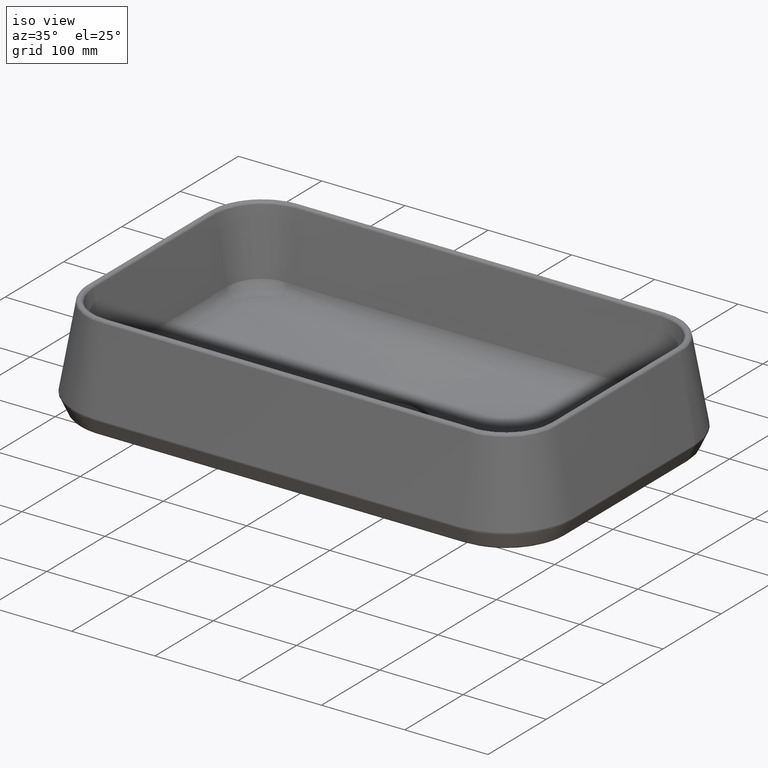
[diagram: clean part render]
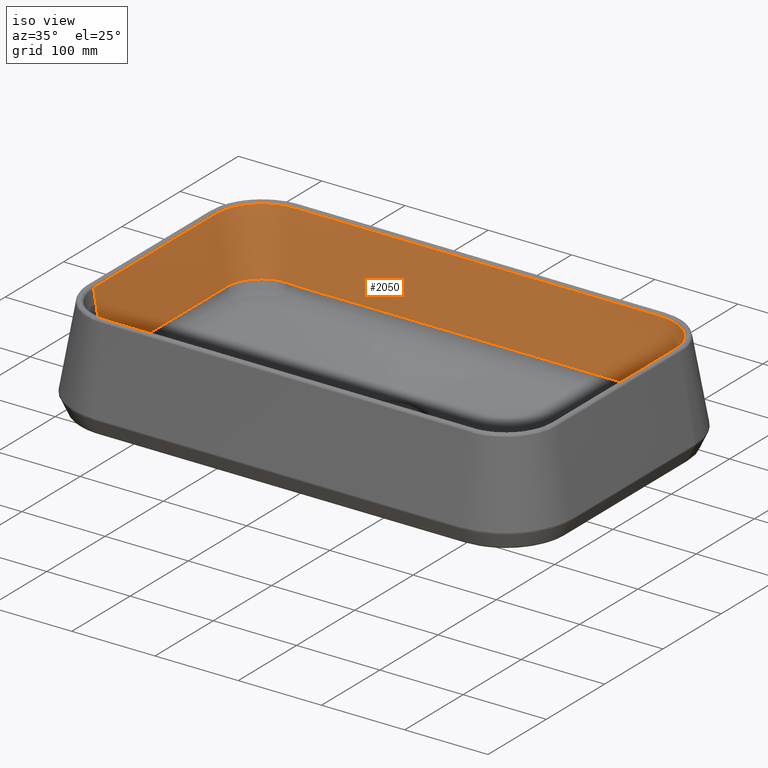
[diagram: same view with one face highlighted and labeled with its STEP entity id]
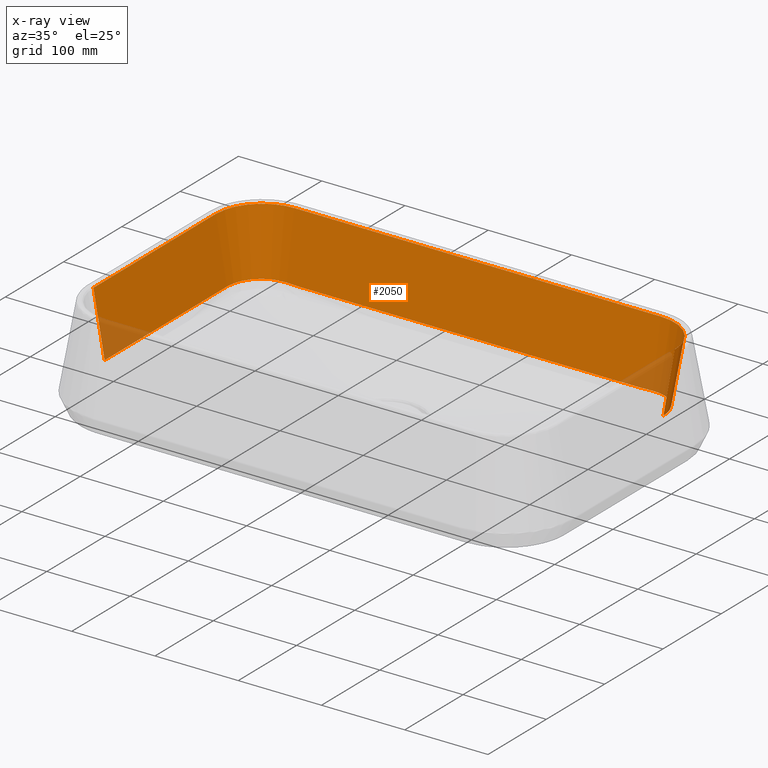
[diagram: x-ray of the same camera — body ghosted, the highlighted face saturated]
A machine part, iso view. The second image highlights one B-rep face of the part: STEP entity #2050.
The next image is the same camera in x-ray: the body ghosted, the highlighted face saturated — about 5% of this face is hidden behind the body in this view.
In plain terms, the highlighted face is a freeform B-spline surface patch.
Its self-contained STEP definition (entity closure, byte-faithful):
#59 = CARTESIAN_POINT ( 'NONE',  ( 82.91873385660538531, 340.9338168300139387, 22.22452315779359822 ) ) ;
#139 = CARTESIAN_POINT ( 'NONE',  ( 500.1888610961831887, 346.9813245837063391, 21.24870913313878873 ) ) ;
#159 = VERTEX_POINT ( 'NONE', #8939 ) ;
#198 = CARTESIAN_POINT ( 'NONE',  ( 63.19679294044160400, 304.9999999999989768, 20.23855445668689867 ) ) ;
#328 = CARTESIAN_POINT ( 'NONE',  ( 49.56982243634900698, 234.9999999999990337, 97.52094453301371857 ) ) ;
#352 = ORIENTED_EDGE ( 'NONE', *, *, #9972, .T. ) ;
#424 = CARTESIAN_POINT ( 'NONE',  ( 541.1297212598051374, 347.0486794019286663, 21.63069728918645751 ) ) ;
#453 = CARTESIAN_POINT ( 'NONE',  ( 600.5650980638040437, 305.0000000000000000, 98.28611671262349603 ) ) ;
#518 = CARTESIAN_POINT ( 'NONE',  ( 105.0000000000000000, 360.4301775636513412, 97.52094453301526755 ) ) ;
#575 = CARTESIAN_POINT ( 'NONE',  ( 325.0000000000000000, 53.19679294044210849, 20.23855445668689867 ) ) ;
#636 = CARTESIAN_POINT ( 'NONE',  ( 72.97759835907659465, 350.5837691451999945, 97.52094453340581026 ) ) ;
#764 = CARTESIAN_POINT ( 'NONE',  ( 50.46491587137720103, 317.1780416379060057, 97.52094453202519730 ) ) ;
#1063 = CARTESIAN_POINT ( 'NONE',  ( 586.8032070595579626, 200.0000000000000000, 20.23855445668689867 ) ) ;
#1153 = CARTESIAN_POINT ( 'NONE',  ( 319.2523486901457090, 346.9381817074564083, 21.00403372341749275 ) ) ;
#1192 = CARTESIAN_POINT ( 'NONE',  ( 62.97976880827857116, 308.5258566094486810, 22.30327525676750255 ) ) ;
#1199 = CARTESIAN_POINT ( 'NONE',  ( 117.8792597533705901, 347.0004539620855439, 21.35719722896116934 ) ) ;
#1233 = CARTESIAN_POINT ( 'NONE',  ( 62.84191149092794859, 295.7825919754770325, 22.25118716943289954 ) ) ;
#1269 = CARTESIAN_POINT ( 'NONE',  ( 427.7023321076529783, 346.9546243362144651, 21.09728450495965646 ) ) ;
#1295 = EDGE_CURVE ( 'NONE', #10996, #17049, #15213, .T. ) ;
#1317 = CARTESIAN_POINT ( 'NONE',  ( 113.8441454012030505, 347.0179271731363428, 21.45629273312446017 ) ) ;
#1351 = CARTESIAN_POINT ( 'NONE',  ( 62.84356881157287944, 266.0301499788491810, 22.24178803699028961 ) ) ;
#1391 = CARTESIAN_POINT ( 'NONE',  ( 476.7773498838889736, 346.9718322434447941, 21.19487539638857143 ) ) ;
#1434 = CARTESIAN_POINT ( 'NONE',  ( 100.2764646979316154, 346.8340192721520907, 21.91746976713236705 ) ) ;
#1440 = CARTESIAN_POINT ( 'NONE',  ( 120.5885111056723247, 346.9942016947449019, 21.32173885886130194 ) ) ;
#1479 = CARTESIAN_POINT ( 'NONE',  ( 62.84394504833733208, 257.2966711921373530, 22.23965429226839419 ) ) ;
#1517 = CARTESIAN_POINT ( 'NONE',  ( 396.8760604965901848, 346.9463010324559491, 21.05008070367392392 ) ) ;
#1554 = CARTESIAN_POINT ( 'NONE',  ( 75.14087039908775978, 334.7745524269374187, 22.30409800320181191 ) ) ;
#1676 = CARTESIAN_POINT ( 'NONE',  ( 558.3874409481187513, 344.9538105146539237, 22.09588636601118949 ) ) ;
#1678 = CARTESIAN_POINT ( 'NONE',  ( 88.33429101957464979, 343.7051889266042508, 22.14939720185635608 ) ) ;
#1791 = CARTESIAN_POINT ( 'NONE',  ( 561.0676477058794944, 343.9549087613406755, 22.14010158827629127 ) ) ;
#1793 = CARTESIAN_POINT ( 'NONE',  ( 102.7818411719139533, 347.0295923456291121, 21.85395971815396976 ) ) ;
#1816 = CARTESIAN_POINT ( 'NONE',  ( 536.6886908398411151, 347.0207351156685149, 21.47221736655681212 ) ) ;
#1911 = CARTESIAN_POINT ( 'NONE',  ( 88.83652199210190759, 343.9155248065143269, 22.14160328927012245 ) ) ;
#1919 = CARTESIAN_POINT ( 'NONE',  ( 120.7352993862959067, 346.9940203013414930, 21.32071012575103808 ) ) ;
#2017 = CARTESIAN_POINT ( 'NONE',  ( 62.84169163908542544, 299.3658782427420988, 22.25243401119072217 ) ) ;
#2020 = CARTESIAN_POINT ( 'NONE',  ( 62.83685039372070946, 304.9999999999989768, 22.27989007801199506 ) ) ;
#2050 = ADVANCED_FACE ( 'NONE', ( #2316 ), #13139, .T. ) ;
#2058 = CARTESIAN_POINT ( 'NONE',  ( 49.43490193619629736, 304.9999999999989768, 98.28611671262349603 ) ) ;
#2159 = CARTESIAN_POINT ( 'NONE',  ( 550.1811000373928664, 346.8730052460559818, 21.93135876992081279 ) ) ;
#2184 = CARTESIAN_POINT ( 'NONE',  ( 63.19679294044249929, 53.19679294044249929, 20.23855445668689867 ) ) ;
#2251 = CARTESIAN_POINT ( 'NONE',  ( 504.1241469584942934, 346.9829754648906714, 21.25807174558642743 ) ) ;
#2287 = CARTESIAN_POINT ( 'NONE',  ( 529.6000640504701096, 346.9944528345130834, 21.32316314326278928 ) ) ;
#2316 = FACE_OUTER_BOUND ( 'NONE', #6172, .T. ) ;
#2390 = ORIENTED_EDGE ( 'NONE', *, *, #16787, .T. ) ;
#2679 = CARTESIAN_POINT ( 'NONE',  ( 427.4559542672556063, 346.9545496593548819, 21.09686099144389715 ) ) ;
#2699 = CARTESIAN_POINT ( 'NONE',  ( 557.1780416379911003, 359.5350841286300465, 97.52094453208570712 ) ) ;
#2777 = CARTESIAN_POINT ( 'NONE',  ( 582.9331742258165150, 323.6448302822170149, 22.34677480664188209 ) ) ;
#2798 = CARTESIAN_POINT ( 'NONE',  ( 325.0000000000000000, 39.43490193619670237, 98.28611671262349603 ) ) ;
#2804 = CARTESIAN_POINT ( 'NONE',  ( 65.06264489638112991, 318.5693853183490205, 22.34160512620152517 ) ) ;
#2934 = CARTESIAN_POINT ( 'NONE',  ( 113.6932496965245605, 347.0187282660804726, 21.46083595697372459 ) ) ;
#2970 = CARTESIAN_POINT ( 'NONE',  ( 62.84467644513598827, 232.9967554905794316, 22.23550633490106421 ) ) ;
#3093 = CARTESIAN_POINT ( 'NONE',  ( 62.84216085212155889, 294.0257433942174430, 22.24977297182938329 ) ) ;
#3127 = ORIENTED_EDGE ( 'NONE', *, *, #23087, .F. ) ;
#3138 = CARTESIAN_POINT ( 'NONE',  ( 424.0127499888275224, 346.9535194150461734, 21.09101818562517039 ) ) ;
#3180 = EDGE_CURVE ( 'NONE', #10007, #11080, #11132, .T. ) ;
#3186 = CARTESIAN_POINT ( 'NONE',  ( 105.0000000000000000, 347.0771883882213160, 21.79237978484614402 ) ) ;
#3217 = CARTESIAN_POINT ( 'NONE',  ( 62.84354300839623164, 266.5996481837172496, 22.24193437407681984 ) ) ;
#3252 = CARTESIAN_POINT ( 'NONE',  ( 463.0579549175205329, 346.9665785981767385, 21.16508049349356924 ) ) ;
#3295 = CARTESIAN_POINT ( 'NONE',  ( 63.33374591708705736, 311.5078070909898429, 22.31877051634057807 ) ) ;
#3317 = CARTESIAN_POINT ( 'NONE',  ( 62.83713368408133704, 95.38022196542272013, 22.27828345854011260 ) ) ;
#3337 = CARTESIAN_POINT ( 'NONE',  ( 62.84383263417946353, 141.8892823960137832, 22.24029182463794285 ) ) ;
#3374 = CARTESIAN_POINT ( 'NONE',  ( 143.3764853126787102, 346.9838385802391372, 21.26296671596986343 ) ) ;
#3415 = CARTESIAN_POINT ( 'NONE',  ( 75.11116091186288202, 334.7447892103423328, 22.30433972017218380 ) ) ;
#3422 = CARTESIAN_POINT ( 'NONE',  ( 121.4806556071306858, 346.9934593248104875, 21.31752866974899163 ) ) ;
#3439 = CARTESIAN_POINT ( 'NONE',  ( 62.84064466966658813, 98.04788315530635145, 22.25837166982157811 ) ) ;
#3442 = CARTESIAN_POINT ( 'NONE',  ( 536.9945036671081198, 347.0224466402785310, 21.48192390496254234 ) ) ;
#3493 = CARTESIAN_POINT ( 'NONE',  ( 342.1539598881005872, 346.9381742338795220, 21.00399133865611034 ) ) ;
#3530 = CARTESIAN_POINT ( 'NONE',  ( 93.49225942545530188, 345.5282755359438056, 22.06200307323368648 ) ) ;
#3537 = CARTESIAN_POINT ( 'NONE',  ( 120.6664665102315439, 346.9941034081139719, 21.32118144767836654 ) ) ;
#3548 = CARTESIAN_POINT ( 'NONE',  ( 62.84068379572191532, 98.10251798504064880, 22.25814977493534030 ) ) ;
#3652 = CARTESIAN_POINT ( 'NONE',  ( 96.48719022657186883, 346.2450642716784728, 22.00264225752609448 ) ) ;
#3675 = CARTESIAN_POINT ( 'NONE',  ( 537.1480569316551055, 347.0233186165856409, 21.48686912834038765 ) ) ;
#3722 = EDGE_CURVE ( 'NONE', #20916, #14371, #22662, .T. ) ;
#3735 = CARTESIAN_POINT ( 'NONE',  ( 488.6948517241133914, 346.9765715051937036, 21.22175308538357541 ) ) ;
#3778 = CARTESIAN_POINT ( 'NONE',  ( 565.9238675604885884, 341.6953913596549341, 22.21094504262886815 ) ) ;
#3780 = CARTESIAN_POINT ( 'NONE',  ( 88.72646132310613609, 343.8699876338132526, 22.14332230609040764 ) ) ;
#3859 = CARTESIAN_POINT ( 'NONE',  ( 520.6848865118136018, 346.9899467566023645, 21.29760790552945693 ) ) ;
#3886 = CARTESIAN_POINT ( 'NONE',  ( 62.84007237754382658, 302.9717010672428614, 22.26161729973290093 ) ) ;
#3923 = CARTESIAN_POINT ( 'NONE',  ( 586.8032070595588721, 346.8032070595580194, 20.23855445668690223 ) ) ;
#3979 = CARTESIAN_POINT ( 'NONE',  ( 504.1714831414896025, 346.9829953898969848, 21.25818474591100227 ) ) ;
#4040 = CARTESIAN_POINT ( 'NONE',  ( 63.19679294044160400, 94.99999999999960210, 20.23855445668679920 ) ) ;
#4127 = CARTESIAN_POINT ( 'NONE',  ( 62.84172035051560812, 300.8206661368120081, 22.25227118057872033 ) ) ;
#4268 = CARTESIAN_POINT ( 'NONE',  ( 540.9991788598819085, 347.0477767182499633, 21.62557791565110676 ) ) ;
#4271 = CARTESIAN_POINT ( 'NONE',  ( 574.7650964590517333, 334.8683631171617208, 22.30331911537328438 ) ) ;
#4292 = CARTESIAN_POINT ( 'NONE',  ( 600.5650980638040437, 200.0000000000000000, 98.28611671262349603 ) ) ;
#4327 = EDGE_CURVE ( 'NONE', #11080, #7400, #14965, .T. ) ;
#4412 = CARTESIAN_POINT ( 'NONE',  ( 545.0000000000000000, 53.19679294044159690, 20.23855445668689867 ) ) ;
#4483 = VERTEX_POINT ( 'NONE', #11015 ) ;
#4526 = CARTESIAN_POINT ( 'NONE',  ( 242.4828798320883152, 346.9485886187048891, 21.06305424997844611 ) ) ;
#4896 = CARTESIAN_POINT ( 'NONE',  ( 65.40961793690114234, 319.5392945601900010, 22.34312415470276036 ) ) ;
#4916 = CARTESIAN_POINT ( 'NONE',  ( 62.83896714883442769, 96.51494441684458536, 22.26788536321879164 ) ) ;
#4941 = CARTESIAN_POINT ( 'NONE',  ( 62.84263233190267783, 286.0999050189024615, 22.24709907711845958 ) ) ;
#4964 = B_SPLINE_CURVE_WITH_KNOTS ( 'NONE', 3,
 ( #2287, #9128, #22366, #22605, #23199, #1816, #3442, #3675, #5645, #6236, #20747, #20383, #5524, #13085, #14829, #21218, #11220, #4268, #7383, #10982, #424, #7500, #16921, #24456, #16678 ),
 .UNSPECIFIED., .F., .F.,
 ( 4, 1, 1, 1, 1, 1, 1, 1, 2, 2, 1, 1, 1, 1, 1, 1, 2, 2, 4 ),
 ( 0.0000000000000000000, 0.2499999999990851762, 0.3749999999986169397, 0.4374999999983827936, 0.4687499999982657206, 0.4843749999982170928, 0.4921874999981828980, 0.4960937499981658005, 0.4980468749981670773, 0.4999999999981683541, 0.6249999999986536325, 0.6874999999988963273, 0.7187499999990176747, 0.7343749999990784039, 0.7421874999991087130, 0.7460937499991239230, 0.7480468749991413535, 0.7499999999991588950, 1.000000000000000000 ),
 .UNSPECIFIED. ) ;
#5041 = CARTESIAN_POINT ( 'NONE',  ( 62.83715037257236702, 95.38638734159023613, 22.27818881340403934 ) ) ;
#5060 = CARTESIAN_POINT ( 'NONE',  ( 62.84449904954293942, 240.0820425963953539, 22.23651239530277479 ) ) ;
#5097 = EDGE_CURVE ( 'NONE', #7290, #10007, #14089, .T. ) ;
#5139 = CARTESIAN_POINT ( 'NONE',  ( 62.89866129202543732, 307.3342403444979709, 22.29601644800457549 ) ) ;
#5145 = CARTESIAN_POINT ( 'NONE',  ( 120.8855973744707200, 346.9938437065858921, 21.31970860712276306 ) ) ;
#5178 = CARTESIAN_POINT ( 'NONE',  ( 62.84498030200514052, 198.0413272594678347, 22.23378307696329870 ) ) ;
#5216 = CARTESIAN_POINT ( 'NONE',  ( 221.6687341679874805, 346.9547818908536101, 21.09817804171938960 ) ) ;
#5261 = CARTESIAN_POINT ( 'NONE',  ( 88.78248716689252262, 343.8931977221455440, 22.14244784000310773 ) ) ;
#5338 = CARTESIAN_POINT ( 'NONE',  ( 224.5534336805280589, 346.9539150048612441, 21.09326168695111292 ) ) ;
#5379 = CARTESIAN_POINT ( 'NONE',  ( 90.17982722667896667, 344.4686131939436677, 22.12056850958805754 ) ) ;
#5385 = CARTESIAN_POINT ( 'NONE',  ( 122.3928037569313716, 346.9931961065404380, 21.31603588475922351 ) ) ;
#5400 = CARTESIAN_POINT ( 'NONE',  ( 62.83783638425850882, 95.78145329624697979, 22.27429824780042722 ) ) ;
#5460 = CARTESIAN_POINT ( 'NONE',  ( 529.1558197225064077, 346.9937636904449505, 21.31925481303653314 ) ) ;
#5503 = CARTESIAN_POINT ( 'NONE',  ( 100.8235047751901163, 346.8892198997610308, 21.90410055128040767 ) ) ;
#5524 = CARTESIAN_POINT ( 'NONE',  ( 537.8869504476434713, 347.0275704692321028, 21.51098258295390053 ) ) ;
#5608 = CARTESIAN_POINT ( 'NONE',  ( 62.84007237754382658, 302.9717010672428614, 22.26161729973290093 ) ) ;
#5621 = CARTESIAN_POINT ( 'NONE',  ( 563.5319128663841184, 342.9403541977682153, 22.17869191256519912 ) ) ;
#5623 = CARTESIAN_POINT ( 'NONE',  ( 86.46892712724906005, 342.8581029645030185, 22.17709639782358977 ) ) ;
#5630 = CARTESIAN_POINT ( 'NONE',  ( 121.7683500885545271, 346.9933586426661236, 21.31695767293365407 ) ) ;
#5645 = CARTESIAN_POINT ( 'NONE',  ( 537.2249952766572960, 347.0237586582398990, 21.48936472857314328 ) ) ;
#5741 = CARTESIAN_POINT ( 'NONE',  ( 569.3904072027563643, 339.4141227624518251, 22.25158632046232299 ) ) ;
#5743 = CARTESIAN_POINT ( 'NONE',  ( 96.20186863743860783, 346.1866595508658975, 22.00858799626695372 ) ) ;
#5820 = CARTESIAN_POINT ( 'NONE',  ( 478.5242989212367206, 346.9725180936460447, 21.19876504616522439 ) ) ;
#5826 = CARTESIAN_POINT ( 'NONE',  ( 545.0000000000010232, 360.4301775636496359, 97.52094453300439625 ) ) ;
#5941 = CARTESIAN_POINT ( 'NONE',  ( 503.9349169422267209, 346.9828958287861838, 21.25762010679446590 ) ) ;
#5982 = EDGE_CURVE ( 'NONE', #17360, #9401, #8730, .T. ) ;
#6069 = CARTESIAN_POINT ( 'NONE',  ( 398.3333333333339965, 360.4301775636510570, 97.52094453301360488 ) ) ;
#6136 = ORIENTED_EDGE ( 'NONE', *, *, #1295, .F. ) ;
#6172 = EDGE_LOOP ( 'NONE', ( #22174, #16177, #23210, #22774, #19254, #19561, #19425, #21354, #352, #2390, #8415, #6136, #3127, #11985, #12227 ) ) ;
#6236 = CARTESIAN_POINT ( 'NONE',  ( 537.2580035058133490, 347.0239481161273716, 21.49043919764649146 ) ) ;
#6239 = CARTESIAN_POINT ( 'NONE',  ( 581.6046928850817039, 326.1311391470249532, 22.34436123249841089 ) ) ;
#6260 = CARTESIAN_POINT ( 'NONE',  ( 545.0000000000000000, 39.43490193619629736, 98.28611671262349603 ) ) ;
#6341 = B_SPLINE_CURVE_WITH_KNOTS ( 'NONE', 1,
 ( #13035, #16989 ),
 .UNSPECIFIED., .F., .F.,
 ( 2, 2 ),
 ( 2.517298893512113889, 78.91679455775292240 ),
 .UNSPECIFIED. ) ;
#6360 = CARTESIAN_POINT ( 'NONE',  ( 576.7447008113795164, 332.8912580854792509, 22.31948508896481442 ) ) ;
#6396 = CARTESIAN_POINT ( 'NONE',  ( 106.6244626116090899, 347.0643630814755056, 21.71964385586577606 ) ) ;
#6438 = CARTESIAN_POINT ( 'NONE',  ( 105.0000000000000000, 360.4301775636513412, 97.52094453301526755 ) ) ;
#6750 = CARTESIAN_POINT ( 'NONE',  ( 63.02664202024481455, 309.0449863166012392, 22.30622629050177963 ) ) ;
#6758 = CARTESIAN_POINT ( 'NONE',  ( 115.9640475261235792, 347.0074537477943295, 21.39689498639397414 ) ) ;
#6832 = CARTESIAN_POINT ( 'NONE',  ( 435.7398407304102079, 346.9570666695015007, 21.11113566532718622 ) ) ;
#6853 = CARTESIAN_POINT ( 'NONE',  ( 62.84168960629371270, 299.2461038436196645, 22.25244553972540373 ) ) ;
#6866 = CARTESIAN_POINT ( 'NONE',  ( 600.4301775636504317, 305.0000000000000000, 97.52094453301107535 ) ) ;
#6868 = CARTESIAN_POINT ( 'NONE',  ( 62.90060554091872547, 307.3696686833519038, 22.29624101346857401 ) ) ;
#6876 = CARTESIAN_POINT ( 'NONE',  ( 549.0592293768061154, 360.4304154643079983, 97.52094453324711765 ) ) ;
#6951 = CARTESIAN_POINT ( 'NONE',  ( 366.7529209086011974, 346.9402796360389516, 21.01593166764530807 ) ) ;
#6991 = CARTESIAN_POINT ( 'NONE',  ( 63.50764551068138530, 312.5359927868972818, 22.32326127816635264 ) ) ;
#7068 = CARTESIAN_POINT ( 'NONE',  ( 324.5406239053707509, 346.9381282977560090, 21.00373082195282848 ) ) ;
#7109 = CARTESIAN_POINT ( 'NONE',  ( 102.6323516618600848, 347.0222512492304077, 21.85792672055334052 ) ) ;
#7129 = CARTESIAN_POINT ( 'NONE',  ( 62.83752860798264095, 95.59674970479352396, 22.27604373379846692 ) ) ;
#7189 = CARTESIAN_POINT ( 'NONE',  ( 224.6325679162084157, 346.9538914865988204, 21.09312830825698981 ) ) ;
#7232 = CARTESIAN_POINT ( 'NONE',  ( 65.58878006397513616, 320.0213833706175706, 22.34378004955690855 ) ) ;
#7251 = CARTESIAN_POINT ( 'NONE',  ( 62.84134073259803444, 101.3139979108959778, 22.25442410077290845 ) ) ;
#7290 = VERTEX_POINT ( 'NONE', #14353 ) ;
#7333 = CARTESIAN_POINT ( 'NONE',  ( 105.0000000000000000, 347.0771883882213160, 21.79237978484614402 ) ) ;
#7356 = CARTESIAN_POINT ( 'NONE',  ( 555.6301739473735779, 345.7837524465000456, 22.04576836417164998 ) ) ;
#7358 = CARTESIAN_POINT ( 'NONE',  ( 99.17327333212182339, 346.7001481145414346, 21.94357997277964145 ) ) ;
#7383 = CARTESIAN_POINT ( 'NONE',  ( 541.0752599885091740, 347.0483023930251534, 21.62855916544627988 ) ) ;
#7400 = VERTEX_POINT ( 'NONE', #17790 ) ;
#7477 = CARTESIAN_POINT ( 'NONE',  ( 102.9258313884499785, 347.0362284471904673, 21.85012002767602368 ) ) ;
#7484 = CARTESIAN_POINT ( 'NONE',  ( 122.7678552331268804, 346.9930183333303262, 21.31502768278464188 ) ) ;
#7500 = CARTESIAN_POINT ( 'NONE',  ( 541.1385384913035068, 347.0487404855767295, 21.63104371176953933 ) ) ;
#7599 = CARTESIAN_POINT ( 'NONE',  ( 102.3328708780795182, 347.0061608502126091, 21.86581521904997416 ) ) ;
#7721 = CARTESIAN_POINT ( 'NONE',  ( 104.0921425318703086, 347.0734277987809264, 21.81865099714275402 ) ) ;
#7745 = CARTESIAN_POINT ( 'NONE',  ( 105.0000000000000000, 360.5650980638039869, 98.28611671262349603 ) ) ;
#7847 = CARTESIAN_POINT ( 'NONE',  ( 587.1631516335799006, 305.0000002924365390, 22.27990157540582317 ) ) ;
#7997 = CARTESIAN_POINT ( 'NONE',  ( 545.0000000000010232, 346.8032070595589857, 20.23855445668679920 ) ) ;
#8313 = CARTESIAN_POINT ( 'NONE',  ( 59.41630824667050348, 337.0223579528320101, 97.52094453294439802 ) ) ;
#8381 = CARTESIAN_POINT ( 'NONE',  ( 62.84253834918686010, 305.8157536592595420, 22.28615283404740666 ) ) ;
#8388 = CARTESIAN_POINT ( 'NONE',  ( 567.9487550056389864, 355.8507382763730220, 97.52094453529029749 ) ) ;
#8415 = ORIENTED_EDGE ( 'NONE', *, *, #11162, .T. ) ;
#8429 = CARTESIAN_POINT ( 'NONE',  ( 79.86437866256549967, 354.5810981612179944, 97.52094453341329938 ) ) ;
#8504 = CARTESIAN_POINT ( 'NONE',  ( 62.83674737761031537, 305.0370188785054779, 22.28047431140600310 ) ) ;
#8630 = CARTESIAN_POINT ( 'NONE',  ( 113.9820500142620432, 347.0172014788240631, 21.45217711616497169 ) ) ;
#8632 = CARTESIAN_POINT ( 'NONE',  ( 584.3911212035390008, 344.3911040927980025, 97.52094453288330556 ) ) ;
#8663 = B_SPLINE_CURVE_WITH_KNOTS ( 'NONE', 3,
 ( #12115, #6876, #2699, #8388, #21996, #8632, #23483, #21632, #23721, #19767, #10367, #20013 ),
 .UNSPECIFIED., .F., .F.,
 ( 4, 1, 1, 1, 1, 1, 1, 1, 1, 4 ),
 ( 0.0000000000000000000, 0.1398649524753360074, 0.2797299049506721258, 0.3898649524769732810, 0.5000000000032754910, 0.6101350475297293574, 0.7202700950561842230, 0.7733342029025701558, 0.8263983107489560886, 1.000000000000000000 ),
 .UNSPECIFIED. ) ;
#8671 = CARTESIAN_POINT ( 'NONE',  ( 99.96133949613400205, 360.4315685331860095, 97.52094453373429417 ) ) ;
#8702 = CARTESIAN_POINT ( 'NONE',  ( 224.4610678236374497, 346.9539424734567206, 21.09341746909770166 ) ) ;
#8726 = CARTESIAN_POINT ( 'NONE',  ( 62.84169235779879159, 298.3287411132097873, 22.25242993516499013 ) ) ;
#8730 = B_SPLINE_CURVE_WITH_KNOTS ( 'NONE', 3,
 ( #22107, #8504, #8865, #8381, #16182, #18153, #12587, #12223, #5139, #12462, #6868, #16419, #14441, #12701, #23713, #15940, #1192, #19757, #20125, #6750, #20242, #14318, #10723, #3295, #8748, #6991, #23476, #23832, #20004, #21864, #14079, #2804, #4896, #7232, #15051, #15169, #12941, #20477, #22583, #18623, #20357, #18744, #18510, #13182, #20596, #22342, #24432, #22222, #14804, #3415, #1554, #18389, #11076, #9107, #59, #11323, #10959, #5623, #12819, #20724, #1678, #18866, #3780, #5261, #16658, #1911, #5379, #16539, #3530, #9343, #24192, #9225, #5743, #3652, #22706, #13306, #16776, #20850, #24074, #24311, #7358, #10840, #1434, #14929, #22463, #9459, #5503, #13061, #11199, #7599, #7109, #1793, #8989, #17015, #16899, #14683, #7477, #15296, #21347, #15794, #7721, #23325, #9719, #13923 ),
 .UNSPECIFIED., .F., .F.,
 ( 4, 2, 2, 2, 2, 2, 1, 1, 1, 1, 1, 1, 2, 2, 2, 1, 2, 2, 2, 2, 1, 1, 2, 2, 2, 2, 2, 1, 1, 1, 1, 2, 2, 2, 2, 2, 1, 1, 1, 1, 2, 2, 2, 2, 1, 1, 1, 1, 2, 2, 2, 1, 1, 1, 2, 2, 1, 1, 1, 1, 1, 1, 1, 1, 2, 2, 2, 4 ),
 ( 0.0000000000000000000, 0.01562500000010590140, 0.03125000000021180280, 0.03515625000023826774, 0.03564453125024159147, 0.03588867187524326374, 0.03613281250024492908, 0.03710937500024652502, 0.03906250000024972385, 0.04687500000025997260, 0.05468750000027022135, 0.05859375000027537000, 0.06054687500027670921, 0.06250000000027804148, 0.09375000000027067237, 0.1093750000002669809, 0.1171875000002651213, 0.1250000000002632894, 0.1875000000002405853, 0.2187500000002280398, 0.2343750000002217393, 0.2421875000002197964, 0.2460937500002199907, 0.2500000000002201572, 0.3750000000002395306, 0.4375000000002481904, 0.4687500000002526868, 0.4843750000002551848, 0.4921875000002557399, 0.4960937500002550737, 0.4980468750002547962, 0.4990234375002534639, 0.5000000000002521316, 0.6250000000001675327, 0.6875000000001244560, 0.7187500000001035838, 0.7343750000000940359, 0.7421875000000892619, 0.7460937500000863754, 0.7480468750000849321, 0.7490234375000841549, 0.7500000000000834888, 0.8125000000000455191, 0.8437500000000265343, 0.8593750000000176525, 0.8671875000000137668, 0.8710937500000122125, 0.8730468750000116573, 0.8740234375000113243, 0.8750000000000111022, 0.9062499999999954481, 0.9218749999999871214, 0.9296874999999829026, 0.9335937499999809042, 0.9355468749999799050, 0.9374999999999789058, 0.9531249999999702460, 0.9609374999999660272, 0.9648437499999641398, 0.9667968749999635847, 0.9677734374999631406, 0.9682617187499628075, 0.9685058593749630296, 0.9686279296874631406, 0.9686889648437132516, 0.9687499999999632516, 0.9843749999999816813, 1.000000000000000000 ),
 .UNSPECIFIED. ) ;
#8748 = CARTESIAN_POINT ( 'NONE',  ( 63.41561249490554530, 312.0210212864383834, 22.32108930785318179 ) ) ;
#8766 = CARTESIAN_POINT ( 'NONE',  ( 62.83994059688863132, 97.26188985201241621, 22.26236466496661492 ) ) ;
#8865 = CARTESIAN_POINT ( 'NONE',  ( 62.83591348945677169, 305.2067900373327234, 22.28184370929190550 ) ) ;
#8889 = CARTESIAN_POINT ( 'NONE',  ( 62.83729019727962850, 95.45586302615737395, 22.27739582808398566 ) ) ;
#8939 = CARTESIAN_POINT ( 'NONE',  ( 62.84007237754382658, 302.9717010672428614, 22.26161729973290093 ) ) ;
#8951 = CARTESIAN_POINT ( 'NONE',  ( 223.9059081297559146, 346.9541079786861815, 21.09435609589696625 ) ) ;
#8989 = CARTESIAN_POINT ( 'NONE',  ( 102.8565225168902089, 347.0330874865388182, 21.85197052866655909 ) ) ;
#8996 = CARTESIAN_POINT ( 'NONE',  ( 121.1323333763518093, 346.9936341726194087, 21.31852028094892759 ) ) ;
#9008 = CARTESIAN_POINT ( 'NONE',  ( 62.84056195161295477, 97.93801047620878819, 22.25884078721513859 ) ) ;
#9070 = CARTESIAN_POINT ( 'NONE',  ( 224.6193809957725875, 346.9538954047854418, 21.09315052939765067 ) ) ;
#9107 = CARTESIAN_POINT ( 'NONE',  ( 79.45228755185260638, 338.6523487052544965, 22.26516711069135468 ) ) ;
#9128 = CARTESIAN_POINT ( 'NONE',  ( 530.7575602166340332, 346.9962484266386014, 21.33334645223991188 ) ) ;
#9225 = CARTESIAN_POINT ( 'NONE',  ( 95.63006293366356658, 346.0642719867783512, 22.02034027661983018 ) ) ;
#9302 = CARTESIAN_POINT ( 'NONE',  ( 504.1832366786235298, 346.9830003374968328, 21.25821280514471212 ) ) ;
#9343 = CARTESIAN_POINT ( 'NONE',  ( 94.15220414216348388, 345.7073823463870212, 22.04952639028490324 ) ) ;
#9401 = VERTEX_POINT ( 'NONE', #7333 ) ;
#9459 = CARTESIAN_POINT ( 'NONE',  ( 100.7826556946554604, 346.8853040826002143, 21.90510684420757315 ) ) ;
#9584 = CARTESIAN_POINT ( 'NONE',  ( 105.0000000000000000, 360.4301775636513412, 97.52094453301526755 ) ) ;
#9609 = CARTESIAN_POINT ( 'NONE',  ( 49.43490193619629736, 199.9999999999990052, 98.28611671262349603 ) ) ;
#9650 = EDGE_CURVE ( 'NONE', #11706, #159, #11734, .T. ) ;
#9717 = CARTESIAN_POINT ( 'NONE',  ( 554.2564217570826486, 346.1105402861421680, 22.01858332466611401 ) ) ;
#9719 = CARTESIAN_POINT ( 'NONE',  ( 104.9661697946878292, 347.0774554818359547, 21.79389454800464421 ) ) ;
#9805 = CARTESIAN_POINT ( 'NONE',  ( 504.1827553455676707, 346.9830001348843780, 21.25821165607272789 ) ) ;
#9870 = CARTESIAN_POINT ( 'NONE',  ( 105.0000000000000000, 346.8032070595589857, 20.23855445668679920 ) ) ;
#9972 = EDGE_CURVE ( 'NONE', #16813, #4483, #17956, .T. ) ;
#10007 = VERTEX_POINT ( 'NONE', #22787 ) ;
#10230 = CARTESIAN_POINT ( 'NONE',  ( 427.9311634075864959, 346.9546938088580532, 21.09767850389911814 ) ) ;
#10246 = CARTESIAN_POINT ( 'NONE',  ( 117.2526924540723314, 347.0025417765894531, 21.36903781339988839 ) ) ;
#10330 = CARTESIAN_POINT ( 'NONE',  ( 586.9159633350930108, 310.3747604821330128, 22.31475412460117624 ) ) ;
#10367 = CARTESIAN_POINT ( 'NONE',  ( 600.4315685331860095, 310.0386605038660264, 97.52094453373419469 ) ) ;
#10399 = CARTESIAN_POINT ( 'NONE',  ( 62.84348212079051166, 267.9371816706536151, 22.24227968484829532 ) ) ;
#10521 = CARTESIAN_POINT ( 'NONE',  ( 62.84367666559999321, 263.6255359745354099, 22.24117636640712092 ) ) ;
#10614 = CARTESIAN_POINT ( 'NONE',  ( 113.9731440894263557, 347.0172481719090456, 21.45244192580878817 ) ) ;
#10723 = CARTESIAN_POINT ( 'NONE',  ( 63.18329367281640430, 310.4841853213558238, 22.31393717171610191 ) ) ;
#10743 = CARTESIAN_POINT ( 'NONE',  ( 62.83688312420057542, 95.27951933062968237, 22.27970445423645529 ) ) ;
#10799 = CARTESIAN_POINT ( 'NONE',  ( 474.7895508933291353, 346.9710563451314442, 21.19047505838940637 ) ) ;
#10840 = CARTESIAN_POINT ( 'NONE',  ( 99.68386869281678742, 346.7672142113513587, 21.93168475200443623 ) ) ;
#10863 = CARTESIAN_POINT ( 'NONE',  ( 62.83782364744435966, 95.77377338557484165, 22.27437048186324020 ) ) ;
#10883 = CARTESIAN_POINT ( 'NONE',  ( 62.84494482566699247, 191.4725893381537674, 22.23398427327477478 ) ) ;
#10923 = CARTESIAN_POINT ( 'NONE',  ( 326.1733822776453167, 346.9381284082110142, 21.00373144837487516 ) ) ;
#10959 = CARTESIAN_POINT ( 'NONE',  ( 85.87358404211039442, 342.5627077616878751, 22.18548534403802464 ) ) ;
#10965 = CARTESIAN_POINT ( 'NONE',  ( 122.9944413077750909, 346.9927975630279775, 21.31377563218280002 ) ) ;
#10979 = CARTESIAN_POINT ( 'NONE',  ( 62.84070280050669055, 98.12976002245532925, 22.25804199344484857 ) ) ;
#10982 = CARTESIAN_POINT ( 'NONE',  ( 541.1079284495465345, 347.0485284905844878, 21.62984142842443447 ) ) ;
#10996 = VERTEX_POINT ( 'NONE', #6866 ) ;
#11015 = CARTESIAN_POINT ( 'NONE',  ( 529.6000640504701096, 346.9944528345130834, 21.32316314326278928 ) ) ;
#11040 = CARTESIAN_POINT ( 'NONE',  ( 223.1631230644995014, 346.9543305020752655, 21.09561808874881805 ) ) ;
#11076 = CARTESIAN_POINT ( 'NONE',  ( 77.22405412528935642, 336.8552723507210658, 22.28709522628239625 ) ) ;
#11080 = VERTEX_POINT ( 'NONE', #9584 ) ;
#11082 = CARTESIAN_POINT ( 'NONE',  ( 121.6699326130000998, 346.9933893030272429, 21.31713155648308344 ) ) ;
#11095 = CARTESIAN_POINT ( 'NONE',  ( 62.84037865173390713, 97.71585303949714785, 22.25988033248659903 ) ) ;
#11132 = B_SPLINE_CURVE_WITH_KNOTS ( 'NONE', 3,
 ( #12154, #14252, #764, #21549, #8313, #15871, #636, #8429, #23405, #21915, #8671, #6438 ),
 .UNSPECIFIED., .F., .F.,
 ( 4, 1, 1, 1, 1, 1, 1, 1, 1, 4 ),
 ( 0.0000000000000000000, 0.1398649524754211060, 0.2797299049508422120, 0.3898649524771135022, 0.5000000000033848480, 0.6101350475298209508, 0.7202700950562559434, 0.7733342029026283315, 0.8263983107490007196, 1.000000000000000000 ),
 .UNSPECIFIED. ) ;
#11162 = EDGE_CURVE ( 'NONE', #18267, #17049, #21148, .T. ) ;
#11199 = CARTESIAN_POINT ( 'NONE',  ( 101.7319469388101965, 346.9683079263658101, 21.88141019083492012 ) ) ;
#11205 = CARTESIAN_POINT ( 'NONE',  ( 121.8113387864960373, 346.9933464347677159, 21.31688843850176340 ) ) ;
#11220 = CARTESIAN_POINT ( 'NONE',  ( 540.8475977244587511, 347.0467329134871193, 21.61965820467662525 ) ) ;
#11278 = CARTESIAN_POINT ( 'NONE',  ( 478.7118941262005478, 346.9725919617291083, 21.19918397288210699 ) ) ;
#11323 = CARTESIAN_POINT ( 'NONE',  ( 84.09485934052871414, 341.6259293729452224, 22.20968321024249548 ) ) ;
#11332 = CARTESIAN_POINT ( 'NONE',  ( 120.4317558854523895, 346.9944126438018088, 21.32293521041234285 ) ) ;
#11404 = CARTESIAN_POINT ( 'NONE',  ( 482.6280469632029053, 346.9741347296559297, 21.20793344457678131 ) ) ;
#11442 = CARTESIAN_POINT ( 'NONE',  ( 572.1798040825599401, 337.2412818213337005, 22.28029510714880956 ) ) ;
#11469 = CARTESIAN_POINT ( 'NONE',  ( 545.0000000000010232, 360.5650980638039869, 98.28611671262349603 ) ) ;
#11591 = CARTESIAN_POINT ( 'NONE',  ( 49.43490193619769713, 39.43490193619710027, 98.28611671262349603 ) ) ;
#11678 = CARTESIAN_POINT ( 'NONE',  ( 62.84169149807847532, 299.3584339789462661, 22.25243481088094555 ) ) ;
#11682 = CARTESIAN_POINT ( 'NONE',  ( 62.83928607036154546, 303.6478177346819507, 22.26607666936043373 ) ) ;
#11706 = VERTEX_POINT ( 'NONE', #15112 ) ;
#11726 = CARTESIAN_POINT ( 'NONE',  ( 49.56982243635579977, 164.9999999999990052, 97.52094453297499399 ) ) ;
#11734 = B_SPLINE_CURVE_WITH_KNOTS ( 'NONE', 3,
 ( #14786, #21847, #12924, #8726, #16283, #23816, #6853, #22569, #15154, #11678, #2017, #4127, #19217, #5608 ),
 .UNSPECIFIED., .F., .F.,
 ( 4, 1, 1, 1, 1, 1, 1, 2, 2, 4 ),
 ( 0.0000000000000000000, 0.2500000000008965606, 0.3750000000013564150, 0.4375000000015978885, 0.4687500000017070789, 0.4843750000017617019, 0.4921875000017889579, 0.4960937500017910673, 0.5000000000017931212, 1.000000000000000000 ),
 .UNSPECIFIED. ) ;
#11827 = CARTESIAN_POINT ( 'NONE',  ( 574.8143885795851702, 334.8192597407881976, 22.30372276040041513 ) ) ;
#11972 = CARTESIAN_POINT ( 'NONE',  ( 586.8032070595580763, 53.19679294044170348, 20.23855445668689867 ) ) ;
#11985 = ORIENTED_EDGE ( 'NONE', *, *, #4327, .F. ) ;
#12095 = CARTESIAN_POINT ( 'NONE',  ( 412.2937182232687405, 346.9502030041388139, 21.07220988474018242 ) ) ;
#12115 = CARTESIAN_POINT ( 'NONE',  ( 545.0000000000010232, 360.4301775636496359, 97.52094453300439625 ) ) ;
#12154 = CARTESIAN_POINT ( 'NONE',  ( 49.56982243635044227, 304.9999999999989768, 97.52094453300563259 ) ) ;
#12223 = CARTESIAN_POINT ( 'NONE',  ( 62.89755806030616725, 307.3138378612935071, 22.29588701019214980 ) ) ;
#12227 = ORIENTED_EDGE ( 'NONE', *, *, #3180, .F. ) ;
#12244 = CARTESIAN_POINT ( 'NONE',  ( 62.83645563311582549, 94.99999999999958789, 22.28212887665320707 ) ) ;
#12346 = CARTESIAN_POINT ( 'NONE',  ( 111.5357196099926114, 347.0309543812653033, 21.53017370174683265 ) ) ;
#12462 = CARTESIAN_POINT ( 'NONE',  ( 62.90035008890198753, 307.3650503585116098, 22.29621175486651907 ) ) ;
#12483 = CARTESIAN_POINT ( 'NONE',  ( 62.84072028877735505, 98.15526649356365851, 22.25794281253340401 ) ) ;
#12505 = CARTESIAN_POINT ( 'NONE',  ( 62.84500686897489885, 206.6597725249850726, 22.23363240819054809 ) ) ;
#12546 = CARTESIAN_POINT ( 'NONE',  ( 312.1584779663973563, 346.9383808028756562, 21.00516284964897551 ) ) ;
#12587 = CARTESIAN_POINT ( 'NONE',  ( 62.88782714797743267, 307.1314517955063934, 22.29472897074004578 ) ) ;
#12608 = CARTESIAN_POINT ( 'NONE',  ( 62.83807541503638561, 95.92566285191746545, 22.27294263689557496 ) ) ;
#12663 = CARTESIAN_POINT ( 'NONE',  ( 420.0915690697794389, 346.9523768083490154, 21.08453814103634727 ) ) ;
#12701 = CARTESIAN_POINT ( 'NONE',  ( 62.90657350854883845, 307.4760735128083979, 22.29691319541161221 ) ) ;
#12722 = CARTESIAN_POINT ( 'NONE',  ( 62.83901196981413051, 96.54675633342117180, 22.26763117081162591 ) ) ;
#12741 = CARTESIAN_POINT ( 'NONE',  ( 62.84432295545622082, 246.1521621869844410, 22.23751107449530906 ) ) ;
#12776 = CARTESIAN_POINT ( 'NONE',  ( 322.7809252933989796, 346.9381369665262014, 21.00377998499258325 ) ) ;
#12819 = CARTESIAN_POINT ( 'NONE',  ( 87.36367614851084795, 343.2763285071198993, 22.16402849228247263 ) ) ;
#12839 = CARTESIAN_POINT ( 'NONE',  ( 62.83780467990172980, 95.76233987533490222, 22.27447805214281829 ) ) ;
#12924 = CARTESIAN_POINT ( 'NONE',  ( 62.84173522887213892, 297.2803266545862471, 22.25218680122581816 ) ) ;
#12929 = CARTESIAN_POINT ( 'NONE',  ( 600.4301775636504317, 305.0000000000000000, 97.52094453301107535 ) ) ;
#12941 = CARTESIAN_POINT ( 'NONE',  ( 65.96755003630461545, 320.9740482751735158, 22.34470758400342660 ) ) ;
#12962 = CARTESIAN_POINT ( 'NONE',  ( 62.83889933146036100, 96.46711159669271751, 22.26826997465953539 ) ) ;
#13035 = CARTESIAN_POINT ( 'NONE',  ( 49.56982243634846697, 94.99999999999941735, 97.52094453301688759 ) ) ;
#13059 = CARTESIAN_POINT ( 'NONE',  ( 560.5412362748098758, 344.1670687926401797, 22.13176341212860976 ) ) ;
#13061 = CARTESIAN_POINT ( 'NONE',  ( 101.2136603632936982, 346.9260049838605369, 21.89446526629355105 ) ) ;
#13085 = CARTESIAN_POINT ( 'NONE',  ( 538.8068188850520528, 347.0331759170484816, 21.54277265724457280 ) ) ;
#13139 =( BOUNDED_SURFACE ( )  B_SPLINE_SURFACE ( 2, 1, ( 
 ( #453, #20873 ),
 ( #13448, #3923 ),
 ( #11469, #7997 ),
 ( #19007, #17153 ),
 ( #7745, #9870 ),
 ( #15565, #23097 ),
 ( #2058, #198 ),
 ( #9609, #22851 ),
 ( #20991, #4040 ),
 ( #11591, #2184 ),
 ( #21366, #16053 ),
 ( #2798, #575 ),
 ( #6260, #4412 ),
 ( #13946, #11972 ),
 ( #14193, #13822 ),
 ( #4292, #1063 ),
 ( #19507, #15694 ) ),
 .UNSPECIFIED., .T., .F., .F. ) 
 B_SPLINE_SURFACE_WITH_KNOTS ( ( 3, 2, 2, 2, 2, 2, 2, 2, 3 ),
 ( 2, 2 ),
 ( 2560.154957186549836, 2678.725097986350193, 3093.887626236959932, 3212.457767036759833, 3410.603519156679795, 3529.173659956490155, 3944.336188207089890, 4062.906329006899796, 4261.052081126509620 ),
 ( 1.740322699668320094, 80.99189440715579735 ),
 .UNSPECIFIED. ) 
 GEOMETRIC_REPRESENTATION_ITEM ( )  RATIONAL_B_SPLINE_SURFACE ( (
 ( 1.000000000000000000, 1.000000000000000000),
 ( 0.7071067811865540120, 0.7071067811865540120),
 ( 1.000000000000000000, 1.000000000000000000),
 ( 1.000000000000000000, 1.000000000000000000),
 ( 1.000000000000000000, 1.000000000000000000),
 ( 0.7071067811865420216, 0.7071067811865420216),
 ( 1.000000000000000000, 1.000000000000000000),
 ( 1.000000000000000000, 1.000000000000000000),
 ( 1.000000000000000000, 1.000000000000000000),
 ( 0.7071067811865560104, 0.7071067811865560104),
 ( 1.000000000000000000, 1.000000000000000000),
 ( 1.000000000000000000, 1.000000000000000000),
 ( 1.000000000000000000, 1.000000000000000000),
 ( 0.7071067811865480168, 0.7071067811865480168),
 ( 1.000000000000000000, 1.000000000000000000),
 ( 1.000000000000000000, 1.000000000000000000),
 ( 1.000000000000000000, 1.000000000000000000) ) ) 
 REPRESENTATION_ITEM ( '' )  SURFACE ( )  );
#13144 = CARTESIAN_POINT ( 'NONE',  ( 496.2739912063997281, 346.9796936793143800, 21.23945981471145927 ) ) ;
#13180 = CARTESIAN_POINT ( 'NONE',  ( 547.5276488180210208, 347.0901078720238502, 21.86564981845233646 ) ) ;
#13182 = CARTESIAN_POINT ( 'NONE',  ( 73.31473974928132975, 332.8352902343572168, 22.31803257976781651 ) ) ;
#13204 = CARTESIAN_POINT ( 'NONE',  ( 122.9944413077750909, 346.9927975630279775, 21.31377563218280002 ) ) ;
#13304 = CARTESIAN_POINT ( 'NONE',  ( 570.5253993706588744, 338.5852016683357419, 22.26384367686311450 ) ) ;
#13306 = CARTESIAN_POINT ( 'NONE',  ( 96.69074258523092169, 346.2856433721021290, 21.99836671615797457 ) ) ;
#13387 = CARTESIAN_POINT ( 'NONE',  ( 529.6000640504701096, 346.9944528345130834, 21.32316314326278928 ) ) ;
#13448 = CARTESIAN_POINT ( 'NONE',  ( 600.5650980638040437, 360.5650980638030205, 98.28611671262358129 ) ) ;
#13454 = EDGE_CURVE ( 'NONE', #9401, #16813, #21013, .T. ) ;
#13512 = CARTESIAN_POINT ( 'NONE',  ( 545.0000000000009095, 347.0771887115759569, 21.79238161867891321 ) ) ;
#13538 = CARTESIAN_POINT ( 'NONE',  ( 62.83821207575382317, 304.3239173789337428, 22.27216759545346747 ) ) ;
#13550 = CARTESIAN_POINT ( 'NONE',  ( 574.7972402576002651, 334.8363615788752554, 22.30358250449911139 ) ) ;
#13671 = CARTESIAN_POINT ( 'NONE',  ( 578.5100010818571263, 330.7547175486948845, 22.33071637365986462 ) ) ;
#13699 = CARTESIAN_POINT ( 'NONE',  ( 49.56982243634846697, 94.99999999999941735, 97.52094453301688759 ) ) ;
#13822 = CARTESIAN_POINT ( 'NONE',  ( 586.8032070595579626, 94.99999999999990052, 20.23855445668689867 ) ) ;
#13923 = CARTESIAN_POINT ( 'NONE',  ( 105.0000000000000000, 347.0771883882213160, 21.79237978484614402 ) ) ;
#13946 = CARTESIAN_POINT ( 'NONE',  ( 600.5650980638040437, 39.43490193619638973, 98.28611671262349603 ) ) ;
#14026 = EDGE_CURVE ( 'NONE', #159, #17360, #17200, .T. ) ;
#14079 = CARTESIAN_POINT ( 'NONE',  ( 64.84647255428062351, 317.9151319845341845, 22.34031612214351625 ) ) ;
#14086 = CARTESIAN_POINT ( 'NONE',  ( 113.9516640741677662, 347.0173608946867034, 21.45308120844901012 ) ) ;
#14089 = B_SPLINE_CURVE_WITH_KNOTS ( 'NONE', 3,
 ( #13699, #11726, #328, #17157 ),
 .UNSPECIFIED., .F., .F.,
 ( 4, 4 ),
 ( 0.0000000000000000000, 1.000000000000000000 ),
 .UNSPECIFIED. ) ;
#14193 = CARTESIAN_POINT ( 'NONE',  ( 600.5650980638030205, 94.99999999999980105, 98.28611671262349603 ) ) ;
#14245 = CARTESIAN_POINT ( 'NONE',  ( 62.84355091155233453, 266.4256359824908600, 22.24188955305141846 ) ) ;
#14252 = CARTESIAN_POINT ( 'NONE',  ( 49.56958453567290235, 309.0592293769079788, 97.52094453335109847 ) ) ;
#14318 = CARTESIAN_POINT ( 'NONE',  ( 63.10070506021656200, 309.8055205391129903, 22.31045392650075243 ) ) ;
#14326 = CARTESIAN_POINT ( 'NONE',  ( 108.9671361487641121, 347.0472375162623280, 21.62251994922095122 ) ) ;
#14341 = CARTESIAN_POINT ( 'NONE',  ( 62.83717224769431908, 95.39439481590534342, 22.27806475342294590 ) ) ;
#14353 = CARTESIAN_POINT ( 'NONE',  ( 49.56982243634846697, 94.99999999999941735, 97.52094453301688759 ) ) ;
#14363 = CARTESIAN_POINT ( 'NONE',  ( 62.84441316863789950, 243.1179881445691251, 22.23699945011843226 ) ) ;
#14371 = VERTEX_POINT ( 'NONE', #22391 ) ;
#14403 = CARTESIAN_POINT ( 'NONE',  ( 447.9363548632521201, 346.9610819833748110, 21.13390764189754023 ) ) ;
#14441 = CARTESIAN_POINT ( 'NONE',  ( 62.90266923880138705, 307.4068980030681359, 22.29647666659474581 ) ) ;
#14462 = CARTESIAN_POINT ( 'NONE',  ( 62.83776138605304595, 95.73626617515836301, 22.27472358375968398 ) ) ;
#14521 = CARTESIAN_POINT ( 'NONE',  ( 427.8255427617334021, 346.9546617290433232, 21.09749657022965508 ) ) ;
#14600 = CARTESIAN_POINT ( 'NONE',  ( 62.84353064505339148, 266.8715508008660322, 22.24200449007852853 ) ) ;
#14683 = CARTESIAN_POINT ( 'NONE',  ( 102.9218338089787750, 347.0360499968790009, 21.85022687708268307 ) ) ;
#14703 = CARTESIAN_POINT ( 'NONE',  ( 62.84101438729848610, 98.58839236348951829, 22.25627489693726346 ) ) ;
#14722 = CARTESIAN_POINT ( 'NONE',  ( 62.84353833008825063, 266.7025670519806226, 22.24196090608014131 ) ) ;
#14786 = CARTESIAN_POINT ( 'NONE',  ( 62.84191149092794859, 295.7825919754770325, 22.25118716943289954 ) ) ;
#14804 = CARTESIAN_POINT ( 'NONE',  ( 75.06662346789755702, 334.7001042216848532, 22.30470149826230042 ) ) ;
#14814 = CARTESIAN_POINT ( 'NONE',  ( 120.1148678006067456, 346.9948920450955825, 21.32565403025544981 ) ) ;
#14825 = CARTESIAN_POINT ( 'NONE',  ( 62.83719158247595971, 95.40142424637271290, 22.27795510042736993 ) ) ;
#14829 = CARTESIAN_POINT ( 'NONE',  ( 539.9543823232236264, 347.0406813389585636, 21.58533802007180569 ) ) ;
#14927 = CARTESIAN_POINT ( 'NONE',  ( 559.4218690970158150, 344.5904074707692644, 22.11344042752598682 ) ) ;
#14929 = CARTESIAN_POINT ( 'NONE',  ( 100.5719421779528489, 346.8645977236007525, 21.91027796787108883 ) ) ;
#14936 = CARTESIAN_POINT ( 'NONE',  ( 118.4722403803517494, 346.9986731477849276, 21.34709772919465820 ) ) ;
#14965 = B_SPLINE_CURVE_WITH_KNOTS ( 'NONE', 3,
 ( #518, #23290, #6069, #5826 ),
 .UNSPECIFIED., .F., .F.,
 ( 4, 4 ),
 ( 0.0000000000000000000, 1.000000000000000000 ),
 .UNSPECIFIED. ) ;
#15049 = CARTESIAN_POINT ( 'NONE',  ( 561.1213254391598184, 343.9328754325608770, 22.14094354101397499 ) ) ;
#15051 = CARTESIAN_POINT ( 'NONE',  ( 65.80747873892303801, 320.5784244064452650, 22.34436392627633694 ) ) ;
#15112 = CARTESIAN_POINT ( 'NONE',  ( 62.84191149092794859, 295.7825919754770325, 22.25118716943289954 ) ) ;
#15132 = CARTESIAN_POINT ( 'NONE',  ( 503.1798323285497077, 346.9825783070828606, 21.25581935173065773 ) ) ;
#15154 = CARTESIAN_POINT ( 'NONE',  ( 62.84169115223735247, 299.3397122896557789, 22.25243677224354144 ) ) ;
#15167 = CARTESIAN_POINT ( 'NONE',  ( 559.9388967319795256, 344.4011702828422585, 22.12204028840127279 ) ) ;
#15169 = CARTESIAN_POINT ( 'NONE',  ( 65.90325093647774679, 320.8159607262481927, 22.34457530188240781 ) ) ;
#15213 = B_SPLINE_CURVE_WITH_KNOTS ( 'NONE', 1,
 ( #12929, #15404 ),
 .UNSPECIFIED., .F., .F.,
 ( 2, 2 ),
 ( 2.517298893512124103, 78.91905621871227083 ),
 .UNSPECIFIED. ) ;
#15252 = CARTESIAN_POINT ( 'NONE',  ( 477.7747350571613083, 346.9722233647968324, 21.19709355580072696 ) ) ;
#15296 = CARTESIAN_POINT ( 'NONE',  ( 102.9284963937575981, 347.0363472840010672, 21.85004879050590887 ) ) ;
#15376 = CARTESIAN_POINT ( 'NONE',  ( 504.1782464093097360, 346.9829982368589754, 21.25820089183542549 ) ) ;
#15404 = CARTESIAN_POINT ( 'NONE',  ( 587.1631516335799006, 305.0000002924365390, 22.27990157540582317 ) ) ;
#15565 = CARTESIAN_POINT ( 'NONE',  ( 49.43490193619530970, 360.5650980638039869, 98.28611671262351024 ) ) ;
#15694 = CARTESIAN_POINT ( 'NONE',  ( 586.8032070595579626, 305.0000000000000000, 20.23855445668689867 ) ) ;
#15794 = CARTESIAN_POINT ( 'NONE',  ( 103.5926415117856436, 347.0658988662871138, 21.83229305609877002 ) ) ;
#15871 = CARTESIAN_POINT ( 'NONE',  ( 65.60889590720090325, 344.3911212035379776, 97.52094453288340503 ) ) ;
#15940 = CARTESIAN_POINT ( 'NONE',  ( 62.94589372415748585, 308.0955111611082202, 22.30073919833946050 ) ) ;
#16053 = CARTESIAN_POINT ( 'NONE',  ( 105.0000000000000000, 53.19679294044249929, 20.23855445668689867 ) ) ;
#16103 = CARTESIAN_POINT ( 'NONE',  ( 62.84250459548957934, 117.5545678511684287, 22.24782350631569727 ) ) ;
#16177 = ORIENTED_EDGE ( 'NONE', *, *, #22614, .T. ) ;
#16182 = CARTESIAN_POINT ( 'NONE',  ( 62.84993255741208884, 306.2550200936275928, 22.28909256091704449 ) ) ;
#16260 = CARTESIAN_POINT ( 'NONE',  ( 427.9135592982079856, 346.9546884605491641, 21.09764817213290655 ) ) ;
#16283 = CARTESIAN_POINT ( 'NONE',  ( 62.84168681286052305, 298.8529483786873584, 22.25246138207223723 ) ) ;
#16321 = CARTESIAN_POINT ( 'NONE',  ( 62.83664709875274923, 95.16442719778335402, 22.28104302106749657 ) ) ;
#16343 = CARTESIAN_POINT ( 'NONE',  ( 62.84497427390745372, 196.5268517483457060, 22.23381726400426572 ) ) ;
#16379 = CARTESIAN_POINT ( 'NONE',  ( 224.2761983166348898, 346.9539975097415549, 21.09372959537938641 ) ) ;
#16419 = CARTESIAN_POINT ( 'NONE',  ( 62.90119367933620964, 307.3803048964222739, 22.29630836606631306 ) ) ;
#16439 = CARTESIAN_POINT ( 'NONE',  ( 62.83839590051737645, 96.12664953659273692, 22.27112507341394121 ) ) ;
#16500 = CARTESIAN_POINT ( 'NONE',  ( 62.83645563311582549, 94.99999999999958789, 22.28212887665320707 ) ) ;
#16539 = CARTESIAN_POINT ( 'NONE',  ( 91.50822156007376407, 344.9362897402536987, 22.09816046261684619 ) ) ;
#16578 = CARTESIAN_POINT ( 'NONE',  ( 62.84487732521663617, 184.3949779799578437, 22.23436708735166789 ) ) ;
#16658 = CARTESIAN_POINT ( 'NONE',  ( 88.81983772086964279, 343.9086394968196032, 22.14186423177013197 ) ) ;
#16674 = CARTESIAN_POINT ( 'NONE',  ( 62.83702126840513813, 95.33706403410619146, 22.27892099952076066 ) ) ;
#16678 = CARTESIAN_POINT ( 'NONE',  ( 545.0000000000009095, 347.0771887115759569, 21.79238161867891321 ) ) ;
#16733 = CARTESIAN_POINT ( 'NONE',  ( 122.9944413077750909, 346.9927975630279775, 21.31377563218280002 ) ) ;
#16776 = CARTESIAN_POINT ( 'NONE',  ( 96.73143027110306491, 346.2936571922511462, 21.99750903936590163 ) ) ;
#16784 = CARTESIAN_POINT ( 'NONE',  ( 121.8401778695344717, 346.9933385033370428, 21.31684345712259798 ) ) ;
#16787 = EDGE_CURVE ( 'NONE', #4483, #18267, #4964, .T. ) ;
#16813 = VERTEX_POINT ( 'NONE', #13204 ) ;
#16899 = CARTESIAN_POINT ( 'NONE',  ( 102.9125056231449662, 347.0356322469989436, 21.85047614792504689 ) ) ;
#16921 = CARTESIAN_POINT ( 'NONE',  ( 542.8150654626164169, 347.0603630182683332, 21.69695837012103823 ) ) ;
#16989 = CARTESIAN_POINT ( 'NONE',  ( 62.83645563311582549, 94.99999999999958789, 22.28212887665320707 ) ) ;
#17015 = CARTESIAN_POINT ( 'NONE',  ( 102.8938472512053437, 347.0347912827452319, 21.85097451185087536 ) ) ;
#17049 = VERTEX_POINT ( 'NONE', #19327 ) ;
#17153 = CARTESIAN_POINT ( 'NONE',  ( 325.0000000000010232, 346.8032070595589857, 20.23855445668679920 ) ) ;
#17157 = CARTESIAN_POINT ( 'NONE',  ( 49.56982243635044227, 304.9999999999989768, 97.52094453300563259 ) ) ;
#17200 = B_SPLINE_CURVE_WITH_KNOTS ( 'NONE', 3,
 ( #3886, #11682, #13538, #2020 ),
 .UNSPECIFIED., .F., .F.,
 ( 4, 4 ),
 ( 0.0000000000000000000, 1.000000000000000000 ),
 .UNSPECIFIED. ) ;
#17261 = CARTESIAN_POINT ( 'NONE',  ( 560.8421228188498162, 344.0466726409032390, 22.13654746216886338 ) ) ;
#17360 = VERTEX_POINT ( 'NONE', #17814 ) ;
#17514 = CARTESIAN_POINT ( 'NONE',  ( 573.5242259314911735, 336.0551048783682972, 22.29271489617655533 ) ) ;
#17636 = CARTESIAN_POINT ( 'NONE',  ( 585.0632154731904393, 318.4697742100026403, 22.34278424437721355 ) ) ;
#17778 = CARTESIAN_POINT ( 'NONE',  ( 425.9789043222981491, 346.9541046445427241, 21.09433718702973337 ) ) ;
#17790 = CARTESIAN_POINT ( 'NONE',  ( 545.0000000000010232, 360.4301775636496359, 97.52094453300439625 ) ) ;
#17795 = CARTESIAN_POINT ( 'NONE',  ( 118.3414173432981187, 346.9990491760631244, 21.34923029153258511 ) ) ;
#17814 = CARTESIAN_POINT ( 'NONE',  ( 62.83685039372070946, 304.9999999999989768, 22.27989007801199506 ) ) ;
#17879 = CARTESIAN_POINT ( 'NONE',  ( 574.6040500471631276, 335.0278943419856432, 22.30199240855705511 ) ) ;
#17949 = CARTESIAN_POINT ( 'NONE',  ( 62.84354153542348342, 266.6320562895101034, 22.24194272772069425 ) ) ;
#17956 = B_SPLINE_CURVE_WITH_KNOTS ( 'NONE', 3,
 ( #16733, #3374, #24268, #22184, #18233, #21488, #5216, #11040, #8951, #16379, #8702, #5338, #23914, #9070, #7189, #18474, #4526, #24034, #20441, #12546, #1153, #12776, #7068, #18352, #20317, #22069, #10923, #3493, #6951, #1517, #12095, #12663, #3138, #17778, #19623, #2679, #1269, #14521, #20200, #16260, #10230, #23793, #6832, #14403, #3252, #21947, #10799, #1391, #15252, #20928, #5820, #18701, #11278, #19191, #20681, #21053, #11404, #3735, #13144, #139, #22908, #15132, #22424, #5941, #18943, #2251, #20806, #3979, #15376, #9805, #9302, #3859, #5460, #13387 ),
 .UNSPECIFIED., .F., .F.,
 ( 4, 1, 1, 1, 1, 1, 1, 1, 1, 1, 1, 1, 2, 2, 1, 1, 1, 1, 1, 1, 1, 2, 2, 1, 1, 1, 1, 1, 1, 1, 1, 1, 1, 1, 2, 2, 1, 1, 1, 1, 1, 1, 1, 1, 1, 1, 2, 2, 1, 1, 1, 1, 1, 1, 1, 1, 1, 1, 1, 2, 2, 4 ),
 ( 0.0000000000000000000, 0.1250000000004879153, 0.1875000000007318590, 0.2187500000008538448, 0.2343750000009148515, 0.2421875000009454382, 0.2460937500009607592, 0.2480468750009683920, 0.2490234375009722501, 0.2495117187509742762, 0.2497558593759751921, 0.2498779296884756362, 0.2499389648447257195, 0.2500000000009758305, 0.3750000000011562973, 0.4375000000012465584, 0.4687500000012919110, 0.4843750000013145596, 0.4921875000013261614, 0.4960937500013318791, 0.4980468750013350432, 0.4990234375013363199, 0.5000000000013375967, 0.6250000000015139001, 0.6875000000016017188, 0.7187500000016456836, 0.7343750000016674440, 0.7421875000016783241, 0.7460937500016837642, 0.7480468750016867618, 0.7490234375016879831, 0.7495117187516887602, 0.7497558593766894264, 0.7498779296891896484, 0.7499389648454397594, 0.7500000000016898705, 0.8125000000018353097, 0.8437500000019080293, 0.8593750000019443336, 0.8671875000019625412, 0.8710937500019717561, 0.8730468750019764190, 0.8740234375019785285, 0.8745117187519797497, 0.8747558593769801938, 0.8748779296894804158, 0.8749389648457303048, 0.8750000000019801938, 0.9062500000018036683, 0.9218750000017152946, 0.9296875000016712187, 0.9335937500016491253, 0.9355468750016384671, 0.9365234375016334711, 0.9370117187516310286, 0.9372558593766302515, 0.9373779296891293633, 0.9374389648453789192, 0.9374694824235034751, 0.9374847412125656421, 0.9375000000016279200, 1.000000000000000000 ),
 .UNSPECIFIED. ) ;
#18037 = CARTESIAN_POINT ( 'NONE',  ( 113.3901728522800454, 347.0203593323675477, 21.47008619355463210 ) ) ;
#18074 = CARTESIAN_POINT ( 'NONE',  ( 62.84354408662036207, 266.5759192786679819, 22.24192825916406235 ) ) ;
#18153 = CARTESIAN_POINT ( 'NONE',  ( 62.88058357529995135, 306.9781220513659150, 22.29374867511892688 ) ) ;
#18233 = CARTESIAN_POINT ( 'NONE',  ( 212.4554753409609305, 346.9576677995099203, 21.11454484301561862 ) ) ;
#18267 = VERTEX_POINT ( 'NONE', #13512 ) ;
#18295 = CARTESIAN_POINT ( 'NONE',  ( 62.84071614939751527, 98.14918811068534410, 22.25796628812293676 ) ) ;
#18315 = CARTESIAN_POINT ( 'NONE',  ( 62.84465094026807463, 170.2340370585994549, 22.23565098019473041 ) ) ;
#18352 = CARTESIAN_POINT ( 'NONE',  ( 325.4193257889418760, 346.9381273887942143, 21.00372566697614474 ) ) ;
#18389 = CARTESIAN_POINT ( 'NONE',  ( 75.15456407956611429, 334.7882520514762064, 22.30398642841742074 ) ) ;
#18432 = CARTESIAN_POINT ( 'NONE',  ( 62.84497847730227704, 197.5375987158875830, 22.23379342536764014 ) ) ;
#18474 = CARTESIAN_POINT ( 'NONE',  ( 224.6370440720575061, 346.9538901566751861, 21.09312076588512141 ) ) ;
#18510 = CARTESIAN_POINT ( 'NONE',  ( 72.86842001891646703, 332.3198374018928121, 22.32110055952404437 ) ) ;
#18529 = CARTESIAN_POINT ( 'NONE',  ( 62.83944262687171545, 96.85623858148888132, 22.26518879327032963 ) ) ;
#18623 = CARTESIAN_POINT ( 'NONE',  ( 68.42551772377012753, 326.1815671281885329, 22.34423380781510460 ) ) ;
#18641 = CARTESIAN_POINT ( 'NONE',  ( 62.84071082579097123, 98.14141902903452319, 22.25799647979591711 ) ) ;
#18701 = CARTESIAN_POINT ( 'NONE',  ( 478.6493533139243368, 346.9725673307736997, 21.19904428379311412 ) ) ;
#18742 = CARTESIAN_POINT ( 'NONE',  ( 560.9924866955229845, 343.9856365276584711, 22.13892010923314047 ) ) ;
#18744 = CARTESIAN_POINT ( 'NONE',  ( 71.56347530293338366, 330.7359545175767721, 22.32948799655991579 ) ) ;
#18866 = CARTESIAN_POINT ( 'NONE',  ( 88.59573501181877475, 343.8154984951582378, 22.14535610312578129 ) ) ;
#18943 = CARTESIAN_POINT ( 'NONE',  ( 504.0610498924997955, 346.9829489081590737, 21.25792113487681689 ) ) ;
#19007 = CARTESIAN_POINT ( 'NONE',  ( 325.0000000000010232, 360.5650980638039869, 98.28611671262349603 ) ) ;
#19191 = CARTESIAN_POINT ( 'NONE',  ( 478.7387002491598764, 346.9726025205081328, 21.19924385469344941 ) ) ;
#19217 = CARTESIAN_POINT ( 'NONE',  ( 62.84118052247866615, 302.0188479364671252, 22.25533269751037935 ) ) ;
#19234 = CARTESIAN_POINT ( 'NONE',  ( 572.7232529199652618, 336.7765902478910220, 22.28545648319146011 ) ) ;
#19254 = ORIENTED_EDGE ( 'NONE', *, *, #9650, .T. ) ;
#19327 = CARTESIAN_POINT ( 'NONE',  ( 587.1631516335799006, 305.0000002924365390, 22.27990157540582317 ) ) ;
#19425 = ORIENTED_EDGE ( 'NONE', *, *, #5982, .T. ) ;
#19507 = CARTESIAN_POINT ( 'NONE',  ( 600.5650980638040437, 305.0000000000000000, 98.28611671262349603 ) ) ;
#19561 = ORIENTED_EDGE ( 'NONE', *, *, #14026, .T. ) ;
#19603 = CARTESIAN_POINT ( 'NONE',  ( 574.7168489882782296, 334.9163193554869622, 22.30292308705350734 ) ) ;
#19623 = CARTESIAN_POINT ( 'NONE',  ( 426.9633724575218707, 346.9544007408281345, 21.09601643250959668 ) ) ;
#19725 = CARTESIAN_POINT ( 'NONE',  ( 585.8644423388376481, 315.7821613368398062, 22.33638010796906670 ) ) ;
#19757 = CARTESIAN_POINT ( 'NONE',  ( 63.00641276785966483, 308.8283841736758291, 22.30500697038696956 ) ) ;
#19767 = CARTESIAN_POINT ( 'NONE',  ( 599.5274358005270869, 316.6164502380310068, 97.52094453146619912 ) ) ;
#19779 = CARTESIAN_POINT ( 'NONE',  ( 62.83651381344547104, 95.06577212523660592, 22.28179891960768799 ) ) ;
#19887 = CARTESIAN_POINT ( 'NONE',  ( 112.7788774242449961, 347.0237369865382675, 21.48924182224600088 ) ) ;
#19921 = CARTESIAN_POINT ( 'NONE',  ( 62.84493926358021554, 218.8205246386291947, 22.23401581743645394 ) ) ;
#20004 = CARTESIAN_POINT ( 'NONE',  ( 63.90823098407138758, 314.5860247994217502, 22.33138423633884173 ) ) ;
#20013 = CARTESIAN_POINT ( 'NONE',  ( 600.4301775636504317, 305.0000000000000000, 97.52094453301107535 ) ) ;
#20046 = CARTESIAN_POINT ( 'NONE',  ( 62.84416316002145209, 251.2185720292588940, 22.23841731943938882 ) ) ;
#20125 = CARTESIAN_POINT ( 'NONE',  ( 63.01846543228885622, 308.9583096659283683, 22.30573980609242923 ) ) ;
#20200 = CARTESIAN_POINT ( 'NONE',  ( 427.8871535222450007, 346.9546804390575403, 21.09760267999270056 ) ) ;
#20242 = CARTESIAN_POINT ( 'NONE',  ( 63.03092651956250592, 309.0896416641805331, 22.30647564952714035 ) ) ;
#20282 = CARTESIAN_POINT ( 'NONE',  ( 62.84435372487396876, 245.1418171614386949, 22.23733657245595197 ) ) ;
#20317 = CARTESIAN_POINT ( 'NONE',  ( 325.7956664342410136, 346.9381277332589661, 21.00372762053110165 ) ) ;
#20357 = CARTESIAN_POINT ( 'NONE',  ( 70.73894299969266797, 329.6298913873844754, 22.33399095160663350 ) ) ;
#20364 = CARTESIAN_POINT ( 'NONE',  ( 118.4816273832527287, 346.9986465150587946, 21.34694668749931878 ) ) ;
#20383 = CARTESIAN_POINT ( 'NONE',  ( 537.2929022267455821, 347.0241487605556472, 21.49157710874456129 ) ) ;
#20441 = CARTESIAN_POINT ( 'NONE',  ( 297.8238664499328365, 346.9392174479483515, 21.00990769963841487 ) ) ;
#20477 = CARTESIAN_POINT ( 'NONE',  ( 65.99920601352094707, 321.0512195121195305, 22.34476813912660376 ) ) ;
#20495 = CARTESIAN_POINT ( 'NONE',  ( 62.83767865335879321, 95.68653673633271239, 22.27519278418449034 ) ) ;
#20596 = CARTESIAN_POINT ( 'NONE',  ( 73.99958933303715014, 333.5886967777830137, 22.31302235901696207 ) ) ;
#20681 = CARTESIAN_POINT ( 'NONE',  ( 478.7565716461773491, 346.9726095602842975, 21.19928377924745888 ) ) ;
#20722 = CARTESIAN_POINT ( 'NONE',  ( 557.6973318992831992, 345.1759753110874840, 22.08371120531561260 ) ) ;
#20724 = CARTESIAN_POINT ( 'NONE',  ( 87.81148588437960711, 343.4792271979611087, 22.15737341795702875 ) ) ;
#20747 = CARTESIAN_POINT ( 'NONE',  ( 537.2800166925239864, 347.0240746144096420, 21.49115660505463765 ) ) ;
#20806 = CARTESIAN_POINT ( 'NONE',  ( 504.1557031392058548, 346.9829887475177657, 21.25814707510827972 ) ) ;
#20850 = CARTESIAN_POINT ( 'NONE',  ( 96.75054828484152836, 346.2974088427851598, 21.99710560783403679 ) ) ;
#20873 = CARTESIAN_POINT ( 'NONE',  ( 586.8032070595579626, 305.0000000000000000, 20.23855445668689867 ) ) ;
#20916 = VERTEX_POINT ( 'NONE', #16500 ) ;
#20928 = CARTESIAN_POINT ( 'NONE',  ( 478.2742990632951887, 346.9724197185213370, 21.19820713310987159 ) ) ;
#20991 = CARTESIAN_POINT ( 'NONE',  ( 49.43490193619629736, 94.99999999999940314, 98.28611671262349603 ) ) ;
#21013 = B_SPLINE_CURVE_WITH_KNOTS ( 'NONE', 3,
 ( #3186, #6396, #14326, #12346, #19887, #18037, #2934, #1317, #23363, #14086, #10614, #8630, #23719, #6758, #10246, #1199, #21506, #17795, #21631, #24199, #14936, #20364, #22469, #22229, #14814, #11332, #1440, #3537, #22113, #24439, #1919, #5145, #8996, #3422, #11082, #5630, #11205, #16784, #22350, #5385, #7484, #10965 ),
 .UNSPECIFIED., .F., .F.,
 ( 4, 1, 1, 1, 1, 1, 1, 1, 2, 2, 1, 1, 1, 1, 1, 1, 2, 2, 1, 1, 1, 1, 1, 2, 2, 1, 1, 1, 1, 2, 2, 4 ),
 ( 0.0000000000000000000, 0.2499999999999651945, 0.3749999999999478195, 0.4374999999999391043, 0.4687499999999334976, 0.4843749999999307221, 0.4921874999999281131, 0.4960937499999267808, 0.4980468749999273914, 0.4999999999999280020, 0.6249999999999725775, 0.6874999999999937828, 0.7187500000000043299, 0.7343750000000095479, 0.7421875000000122125, 0.7460937500000135447, 0.7480468750000155431, 0.7500000000000174305, 0.8125000000000546230, 0.8437500000000732747, 0.8593750000000824896, 0.8671875000000872635, 0.8710937500000883738, 0.8730468750000900391, 0.8750000000000918154, 0.9062500000000743849, 0.9218750000000656142, 0.9296875000000622835, 0.9335937500000616174, 0.9355468750000612843, 0.9375000000000608402, 1.000000000000000000 ),
 .UNSPECIFIED. ) ;
#21053 = CARTESIAN_POINT ( 'NONE',  ( 478.7669174475043405, 346.9726136358501662, 21.19930689293097004 ) ) ;
#21090 = CARTESIAN_POINT ( 'NONE',  ( 573.9211626228986916, 335.6882539537380126, 22.29622318989934726 ) ) ;
#21148 = B_SPLINE_CURVE_WITH_KNOTS ( 'NONE', 3,
 ( #24309, #13180, #2159, #9717, #7356, #20722, #1676, #14927, #15167, #13059, #17261, #18742, #1791, #22704, #15049, #22581, #5621, #3778, #5741, #13304, #11442, #19234, #17514, #21090, #21469, #17879, #19603, #4271, #13550, #11827, #6360, #13671, #6239, #2777, #17636, #19725, #10330, #21222, #7847 ),
 .UNSPECIFIED., .F., .F.,
 ( 4, 2, 2, 2, 1, 1, 1, 1, 1, 2, 2, 2, 2, 2, 1, 1, 1, 1, 2, 2, 2, 2, 2, 4 ),
 ( 0.0000000000000000000, 0.1249999999993840205, 0.1874999999990787092, 0.2187499999989257204, 0.2343749999988496147, 0.2421874999988137545, 0.2460937499987976007, 0.2480468749987890520, 0.2490234374987864985, 0.2495117187487848054, 0.2499999999987830845, 0.3749999999993713362, 0.4374999999996633804, 0.4687499999998105404, 0.4843749999998815392, 0.4921874999999162337, 0.4960937499999344413, 0.4980468749999418243, 0.4990234374999438782, 0.4999999999999458211, 0.6249999999999594769, 0.7499999999999729106, 0.8749999999999864553, 1.000000000000000000 ),
 .UNSPECIFIED. ) ;
#21218 = CARTESIAN_POINT ( 'NONE',  ( 540.5467599409419108, 347.0446754831112344, 21.60798993719081196 ) ) ;
#21222 = CARTESIAN_POINT ( 'NONE',  ( 587.1666130560341799, 307.6560421969872436, 22.29953227764141843 ) ) ;
#21347 = CARTESIAN_POINT ( 'NONE',  ( 102.9285774205778381, 347.0363509532996318, 21.85004662702980127 ) ) ;
#21354 = ORIENTED_EDGE ( 'NONE', *, *, #13454, .T. ) ;
#21366 = CARTESIAN_POINT ( 'NONE',  ( 105.0000000000000000, 39.43490193619719975, 98.28611671262349603 ) ) ;
#21376 = B_SPLINE_CURVE_WITH_KNOTS ( 'NONE', 3,
 ( #23636, #16103, #3337, #18315, #16578, #10883, #23995, #16343, #18432, #5178, #12505, #19921, #2970, #5060, #14363, #20282, #12741, #20046, #1479, #10521, #1351, #14245, #18074, #3217, #24111, #17949, #14722, #14600, #10399, #21907, #4941, #3093, #1233 ),
 .UNSPECIFIED., .F., .F.,
 ( 4, 1, 1, 1, 1, 1, 2, 2, 1, 1, 1, 2, 2, 1, 1, 1, 1, 1, 2, 2, 1, 1, 1, 1, 4 ),
 ( 0.0000000000000000000, 0.2500000000000872080, 0.3750000000001307843, 0.4375000000001528222, 0.4687500000001636469, 0.4843750000001688094, 0.4921875000001711964, 0.5000000000001735279, 0.6250000000002099432, 0.6875000000002282619, 0.7187500000002376987, 0.7343750000002423617, 0.7500000000002470246, 0.8125000000002663425, 0.8437500000002763345, 0.8476562500002777778, 0.8496093750002788880, 0.8498535156252789990, 0.8499755859377791101, 0.8500976562502791101, 0.8505859375002777778, 0.8515625000002755574, 0.8593750000002609024, 0.8750000000002322587, 1.000000000000000000 ),
 .UNSPECIFIED. ) ;
#21469 = CARTESIAN_POINT ( 'NONE',  ( 574.3775733495602935, 335.2497493919325393, 22.30010460189566501 ) ) ;
#21488 = CARTESIAN_POINT ( 'NONE',  ( 218.6446813109698155, 346.9557100364079361, 21.10344181672811104 ) ) ;
#21506 = CARTESIAN_POINT ( 'NONE',  ( 118.1881046118507328, 346.9995020976081150, 21.35179893725633704 ) ) ;
#21549 = CARTESIAN_POINT ( 'NONE',  ( 54.14926172362010703, 327.9487550056650207, 97.52094453531609020 ) ) ;
#21631 = CARTESIAN_POINT ( 'NONE',  ( 118.4177962845745355, 346.9988284679640742, 21.34797859370289075 ) ) ;
#21632 = CARTESIAN_POINT ( 'NONE',  ( 594.5810981612180512, 330.1356213374339745, 97.52094453341319991 ) ) ;
#21847 = CARTESIAN_POINT ( 'NONE',  ( 62.84182645755846863, 296.3816858140537533, 22.25166941763563599 ) ) ;
#21864 = CARTESIAN_POINT ( 'NONE',  ( 64.24544726474985623, 315.9331090039481182, 22.33562015479795448 ) ) ;
#21907 = CARTESIAN_POINT ( 'NONE',  ( 62.84335675627550444, 270.6688491202447153, 22.24299066234309308 ) ) ;
#21915 = CARTESIAN_POINT ( 'NONE',  ( 93.38354976196831103, 359.5274358005269733, 97.52094453146619912 ) ) ;
#21947 = CARTESIAN_POINT ( 'NONE',  ( 470.8418383361453152, 346.9695299260653769, 21.18181830569091773 ) ) ;
#21996 = CARTESIAN_POINT ( 'NONE',  ( 577.0223579528461642, 350.5836917533310952, 97.52094453295431720 ) ) ;
#22007 = CARTESIAN_POINT ( 'NONE',  ( 62.83873698958876730, 96.35469706600095208, 22.26919066116448320 ) ) ;
#22069 = CARTESIAN_POINT ( 'NONE',  ( 326.0465055586113294, 346.9381281260172614, 21.00372984797455445 ) ) ;
#22107 = CARTESIAN_POINT ( 'NONE',  ( 62.83685039372070946, 304.9999999999989768, 22.27989007801199506 ) ) ;
#22113 = CARTESIAN_POINT ( 'NONE',  ( 120.6997854967100068, 346.9940628255359911, 21.32095129244126852 ) ) ;
#22174 = ORIENTED_EDGE ( 'NONE', *, *, #5097, .F. ) ;
#22184 = CARTESIAN_POINT ( 'NONE',  ( 199.5126623770541698, 346.9619892136867634, 21.13905280067112713 ) ) ;
#22222 = CARTESIAN_POINT ( 'NONE',  ( 74.96289101074427208, 334.5955584205100877, 22.30554006558097058 ) ) ;
#22229 = CARTESIAN_POINT ( 'NONE',  ( 119.4675810532952624, 346.9960808604051294, 21.33239613690567538 ) ) ;
#22342 = CARTESIAN_POINT ( 'NONE',  ( 74.34585536773565195, 333.9604596576909330, 22.31041518586241068 ) ) ;
#22350 = CARTESIAN_POINT ( 'NONE',  ( 121.8529269767592780, 346.9933350944122594, 21.31682412414866690 ) ) ;
#22363 = CARTESIAN_POINT ( 'NONE',  ( 62.83716155814825299, 95.39049758831220061, 22.27812537685111849 ) ) ;
#22366 = CARTESIAN_POINT ( 'NONE',  ( 532.5884295137158233, 347.0013136916971348, 21.36207299787761116 ) ) ;
#22391 = CARTESIAN_POINT ( 'NONE',  ( 62.84134073259803444, 101.3139979108959778, 22.25442410077290845 ) ) ;
#22424 = CARTESIAN_POINT ( 'NONE',  ( 503.6828957685308978, 346.9827898064023657, 21.25701882397695641 ) ) ;
#22463 = CARTESIAN_POINT ( 'NONE',  ( 100.6983946992648669, 346.8771014563470203, 21.90717770243941587 ) ) ;
#22469 = CARTESIAN_POINT ( 'NONE',  ( 118.8896028511042857, 346.9974941524778274, 21.34041131454408458 ) ) ;
#22569 = CARTESIAN_POINT ( 'NONE',  ( 62.84169065121069053, 299.3116297557598955, 22.25243961370698642 ) ) ;
#22581 = CARTESIAN_POINT ( 'NONE',  ( 561.1334618578538311, 343.9278836413959084, 22.14113369674254983 ) ) ;
#22583 = CARTESIAN_POINT ( 'NONE',  ( 67.09869714199118107, 323.7080220578751550, 22.34670770004527540 ) ) ;
#22605 = CARTESIAN_POINT ( 'NONE',  ( 534.8900375273587997, 347.0113739521213461, 21.41912756992260825 ) ) ;
#22614 = EDGE_CURVE ( 'NONE', #7290, #20916, #6341, .T. ) ;
#22662 = B_SPLINE_CURVE_WITH_KNOTS ( 'NONE', 3,
 ( #12244, #19779, #16321, #10743, #16674, #24211, #3317, #5041, #22363, #14341, #14825, #8889, #7129, #20495, #14462, #12839, #10863, #5400, #24333, #12608, #16439, #22007, #12962, #4916, #12722, #24092, #18529, #8766, #11095, #9008, #3439, #3548, #10979, #18641, #18295, #12483, #14703, #23856, #7251 ),
 .UNSPECIFIED., .F., .F.,
 ( 4, 1, 1, 1, 1, 1, 2, 2, 1, 1, 1, 1, 1, 2, 2, 1, 1, 1, 2, 2, 1, 1, 1, 1, 1, 1, 2, 2, 4 ),
 ( 0.0000000000000000000, 0.03125000000029421604, 0.04687500000044463044, 0.05468750000051983418, 0.05859375000055745686, 0.06054687500057295141, 0.06152343750058069521, 0.06250000000058844596, 0.09375000000058392180, 0.1093750000005816597, 0.1171875000005782458, 0.1210937500005745682, 0.1230468750005708906, 0.1240234375005690448, 0.1250000000005672129, 0.1875000000004753142, 0.2187500000004327094, 0.2343750000004113931, 0.2421875000004007350, 0.2500000000003900769, 0.3750000000001881273, 0.4375000000000872080, 0.4687500000000367484, 0.4843750000000114908, 0.4921874999999988898, 0.4960937499999925615, 0.4980468749999929501, 0.4999999999999932832, 1.000000000000000000 ),
 .UNSPECIFIED. ) ;
#22704 = CARTESIAN_POINT ( 'NONE',  ( 561.0998549669824342, 343.9416947599390824, 22.14060689833287299 ) ) ;
#22706 = CARTESIAN_POINT ( 'NONE',  ( 96.62969996264031636, 346.2735733357980052, 21.99965198851457515 ) ) ;
#22774 = ORIENTED_EDGE ( 'NONE', *, *, #23518, .T. ) ;
#22787 = CARTESIAN_POINT ( 'NONE',  ( 49.56982243635044227, 304.9999999999989768, 97.52094453300563259 ) ) ;
#22851 = CARTESIAN_POINT ( 'NONE',  ( 63.19679294044160400, 199.9999999999990052, 20.23855445668679920 ) ) ;
#22908 = CARTESIAN_POINT ( 'NONE',  ( 502.1776210782343810, 346.9821574902351813, 21.25343278079320797 ) ) ;
#23087 = EDGE_CURVE ( 'NONE', #7400, #10996, #8663, .T. ) ;
#23097 = CARTESIAN_POINT ( 'NONE',  ( 63.19679294044081530, 346.8032070595580194, 20.23855445668679920 ) ) ;
#23199 = CARTESIAN_POINT ( 'NONE',  ( 536.0822399926079243, 347.0174417784642174, 21.45353992314537805 ) ) ;
#23210 = ORIENTED_EDGE ( 'NONE', *, *, #3722, .T. ) ;
#23290 = CARTESIAN_POINT ( 'NONE',  ( 251.6666666666669698, 360.4301775636440652, 97.52094453297499399 ) ) ;
#23325 = CARTESIAN_POINT ( 'NONE',  ( 104.7788502721754611, 347.0792551394549150, 21.79945174309568756 ) ) ;
#23363 = CARTESIAN_POINT ( 'NONE',  ( 113.9194325741826646, 347.0175302367140944, 21.45404159481009643 ) ) ;
#23405 = CARTESIAN_POINT ( 'NONE',  ( 85.65631924525460761, 357.0136213227750659, 97.52094453529392126 ) ) ;
#23476 = CARTESIAN_POINT ( 'NONE',  ( 63.57128148533020351, 312.8796573119266213, 22.32467663144190340 ) ) ;
#23483 = CARTESIAN_POINT ( 'NONE',  ( 590.5837691452011313, 337.0224016409230217, 97.52094453340588132 ) ) ;
#23518 = EDGE_CURVE ( 'NONE', #14371, #11706, #21376, .T. ) ;
#23636 = CARTESIAN_POINT ( 'NONE',  ( 62.84134073259803444, 101.3139979108959778, 22.25442410077290845 ) ) ;
#23713 = CARTESIAN_POINT ( 'NONE',  ( 62.92034014629198424, 307.7104766190611826, 22.29838212755968385 ) ) ;
#23719 = CARTESIAN_POINT ( 'NONE',  ( 114.7986198804202047, 347.0129263097371677, 21.42793142744586987 ) ) ;
#23721 = CARTESIAN_POINT ( 'NONE',  ( 597.0136213227741564, 324.3436807547449803, 97.52094453529392126 ) ) ;
#23793 = CARTESIAN_POINT ( 'NONE',  ( 427.9411594355139528, 346.9546968461153824, 21.09769572904151502 ) ) ;
#23816 = CARTESIAN_POINT ( 'NONE',  ( 62.84168801304105045, 299.1150520204687382, 22.25245457551026718 ) ) ;
#23832 = CARTESIAN_POINT ( 'NONE',  ( 63.60461379675196270, 313.0535521932955589, 22.32537539531497828 ) ) ;
#23856 = CARTESIAN_POINT ( 'NONE',  ( 62.84122082045462321, 99.64074106437726641, 22.25510415633175754 ) ) ;
#23914 = CARTESIAN_POINT ( 'NONE',  ( 224.5995993848219996, 346.9539012829501416, 21.09318386612640239 ) ) ;
#23995 = CARTESIAN_POINT ( 'NONE',  ( 62.84496715288619129, 195.0106802416308085, 22.23385764932247355 ) ) ;
#24034 = CARTESIAN_POINT ( 'NONE',  ( 268.5671631411306635, 346.9426445550297444, 21.02934378972350515 ) ) ;
#24074 = CARTESIAN_POINT ( 'NONE',  ( 97.46198026215850518, 346.4364341317830736, 21.98207450080779424 ) ) ;
#24092 = CARTESIAN_POINT ( 'NONE',  ( 62.83903205351530374, 96.56109172491264303, 22.26751727048220530 ) ) ;
#24111 = CARTESIAN_POINT ( 'NONE',  ( 62.84354228944611975, 266.6154674456491307, 22.24193845144562331 ) ) ;
#24192 = CARTESIAN_POINT ( 'NONE',  ( 95.13811009347755032, 345.9496979420782168, 22.03017503613013872 ) ) ;
#24199 = CARTESIAN_POINT ( 'NONE',  ( 118.4504706684535478, 346.9987351114945682, 21.34744914285416684 ) ) ;
#24211 = CARTESIAN_POINT ( 'NONE',  ( 62.83709537337752948, 95.36583604510664713, 22.27850072933783565 ) ) ;
#24268 = CARTESIAN_POINT ( 'NONE',  ( 171.3694323536773538, 346.9722555939309814, 21.19727633630404640 ) ) ;
#24309 = CARTESIAN_POINT ( 'NONE',  ( 545.0000000000009095, 347.0771887115759569, 21.79238161867891321 ) ) ;
#24311 = CARTESIAN_POINT ( 'NONE',  ( 98.14898231433795672, 346.5526312324498122, 21.96698501170030937 ) ) ;
#24333 = CARTESIAN_POINT ( 'NONE',  ( 62.83784572505945931, 95.78708763629349221, 22.27424527348593841 ) ) ;
#24432 = CARTESIAN_POINT ( 'NONE',  ( 74.75618496881250508, 334.3853460894988530, 22.30719487398535250 ) ) ;
#24439 = CARTESIAN_POINT ( 'NONE',  ( 120.7219780493363004, 346.9940361127646611, 21.32079979678758974 ) ) ;
#24456 = CARTESIAN_POINT ( 'NONE',  ( 544.0978871878120344, 347.0698157278838494, 21.75056735030957711 ) ) ;